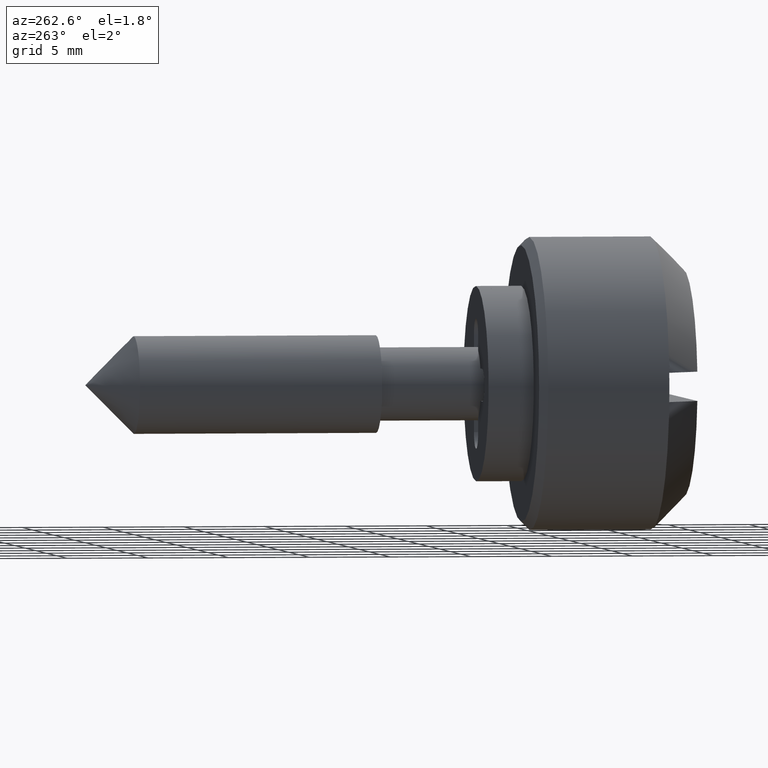
[diagram: clean part render]
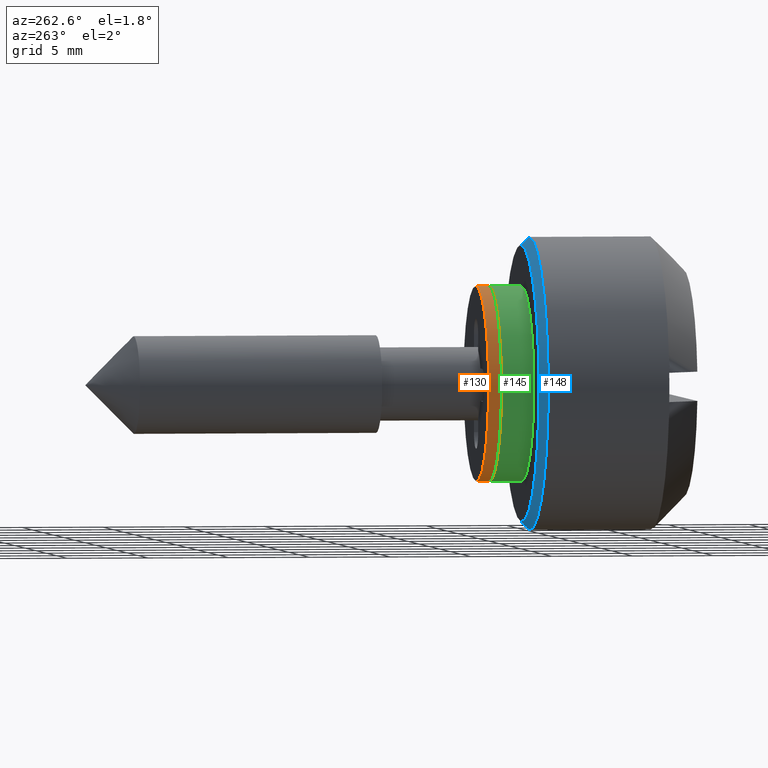
[diagram: same view with three faces highlighted in distinct colors, each labeled with its STEP entity id]
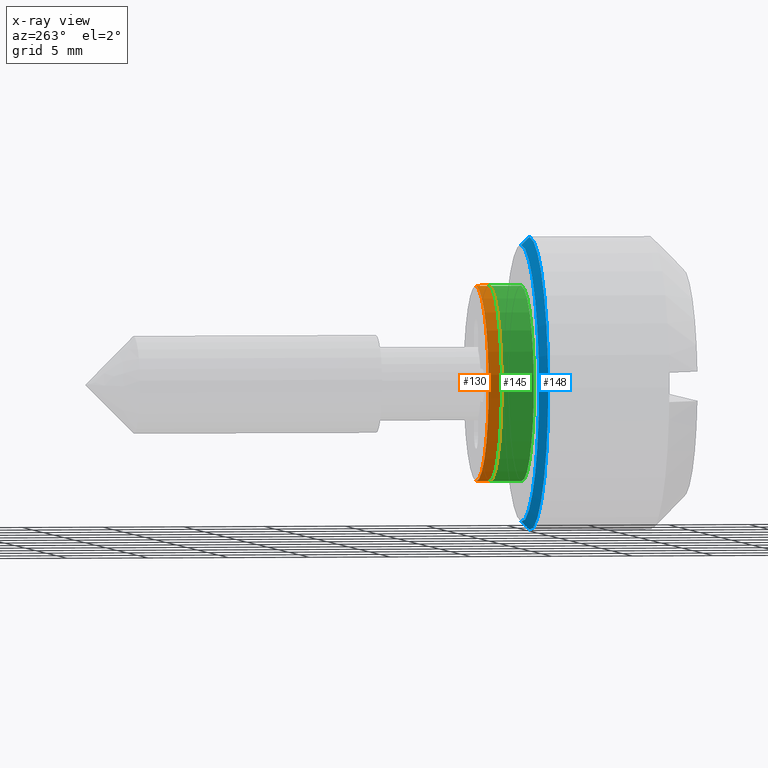
[diagram: x-ray of the same camera — body ghosted, the three highlighted faces saturated]
A machine part, auxiliary view with three faces highlighted in distinct colors.
The next image is the same camera in x-ray (body ghosted, the three faces saturated) — at least one of them is partly hidden behind the body in this view.
Their STEP definitions:

[orange] entity #130 — the highlighted cylindrical surface (partial cylindrical patch) has radius 6 mm, axis along (0, 1, 0).
#130=ADVANCED_FACE('',(#337),#336,.T.);
#336=CYLINDRICAL_SURFACE('',#674,6.00000000000E+00);
#337=FACE_OUTER_BOUND('',#675,.T.);
#671=CARTESIAN_POINT('',(0.00000000000E+00,1.00000000000E+03,0.00000000000E+00));
#672=DIRECTION('',(-0.00000000000E+00,1.00000000000E+00,-0.00000000000E+00));
#673=DIRECTION('',(1.22464679915E-16,0.00000000000E+00,-1.00000000000E+00));
#674=AXIS2_PLACEMENT_3D('',#671,#672,#673);
#675=EDGE_LOOP('',(#930,#931,#932,#933));
#930=ORIENTED_EDGE('',*,*,#1041,.T.);
#931=ORIENTED_EDGE('',*,*,#1082,.F.);
#932=ORIENTED_EDGE('',*,*,#1080,.F.);
#933=ORIENTED_EDGE('',*,*,#1083,.T.);
#1041=EDGE_CURVE('',#1199,#1198,#1206,.T.);
#1080=EDGE_CURVE('',#1464,#1465,#1466,.T.);
#1082=EDGE_CURVE('',#1465,#1198,#1478,.T.);
#1083=EDGE_CURVE('',#1464,#1199,#1484,.T.);
#1198=VERTEX_POINT('',#1835);
#1199=VERTEX_POINT('',#1836);
#1206=CIRCLE('',#1844,6.00000000000E+00);
#1464=VERTEX_POINT('',#1997);
#1465=VERTEX_POINT('',#1998);
#1466=CIRCLE('',#2002,6.00000000000E+00);
#1478=(BOUNDED_CURVE() B_SPLINE_CURVE(1,(#2007,#2008),.UNSPECIFIED.,.F.,.F.) B_SPLINE_CURVE_WITH_KNOTS((2,2),(8.33332935974E-02,9.16666633252E-01),.UNSPECIFIED.) CURVE() GEOMETRIC_REPRESENTATION_ITEM() RATIONAL_B_SPLINE_CURVE((1.00000000000E+00,1.00000000000E+00)) REPRESENTATION_ITEM('') );
#1484=(BOUNDED_CURVE() B_SPLINE_CURVE(1,(#2009,#2010),.UNSPECIFIED.,.F.,.F.) B_SPLINE_CURVE_WITH_KNOTS((2,2),(8.33333333334E-02,9.16666666667E-01),.UNSPECIFIED.) CURVE() GEOMETRIC_REPRESENTATION_ITEM() RATIONAL_B_SPLINE_CURVE((7.50000000000E-01,7.50000000000E-01)) REPRESENTATION_ITEM('') );
#1835=CARTESIAN_POINT('',(1.18423789293E-15,8.00000000000E-01,-6.00000000000E+00));
#1836=CARTESIAN_POINT('',(0.00000000000E+00,8.00000000000E-01,6.00000000000E+00));
#1841=CARTESIAN_POINT('',(0.00000000000E+00,8.00000000000E-01,0.00000000000E+00));
#1842=DIRECTION('',(-0.00000000000E+00,-1.00000000000E+00,0.00000000000E+00));
#1843=DIRECTION('',(-1.22460635382E-16,0.00000000000E+00,1.00000000000E+00));
#1844=AXIS2_PLACEMENT_3D('',#1841,#1842,#1843);
#1997=CARTESIAN_POINT('',(0.00000000000E+00,0.00000000000E+00,6.00000000000E+00));
#1998=CARTESIAN_POINT('',(1.18423789293E-15,0.00000000000E+00,-6.00000000000E+00));
#1999=CARTESIAN_POINT('',(0.00000000000E+00,0.00000000000E+00,0.00000000000E+00));
#2000=DIRECTION('',(-0.00000000000E+00,-1.00000000000E+00,0.00000000000E+00));
#2001=DIRECTION('',(-1.22460635382E-16,0.00000000000E+00,1.00000000000E+00));
#2002=AXIS2_PLACEMENT_3D('',#1999,#2000,#2001);
#2007=CARTESIAN_POINT('',(7.34788079488E-16,-3.81465210669E-08,-6.00000000000E+00));
#2008=CARTESIAN_POINT('',(7.34788079488E-16,7.99999967922E-01,-6.00000000000E+00));
#2009=CARTESIAN_POINT('',(0.00000000000E+00,0.00000000000E+00,6.00000000000E+00));
#2010=CARTESIAN_POINT('',(0.00000000000E+00,8.00000000000E-01,6.00000000000E+00));

[blue] entity #148 — the highlighted face is a freeform B-spline surface patch.
#148=ADVANCED_FACE('',(#520),#519,.T.);
#519=( BOUNDED_SURFACE() B_SPLINE_SURFACE( 2,1,((#776,#777),(#778,#779),(#780,#781),(#782,#783),(#784,#785)), .UNSPECIFIED.,.F.,.F.,.F.) B_SPLINE_SURFACE_WITH_KNOTS((3,2,3),(2,2),(0.00000000000E+00,5.00000000000E-01,1.00000000000E+00),(0.00000000000E+00,1.00000000000E+00), .UNSPECIFIED. ) GEOMETRIC_REPRESENTATION_ITEM() RATIONAL_B_SPLINE_SURFACE(((1.00000000000E+00,1.00000000000E+00),(7.07106781187E-01,7.07106781187E-01),(1.00000000000E+00,1.00000000000E+00),(7.07106781187E-01,7.07106781187E-01),(1.00000000000E+00,1.00000000000E+00))) REPRESENTATION_ITEM('') SURFACE() );
#520=FACE_OUTER_BOUND('',#786,.T.);
#776=CARTESIAN_POINT('',(6.50000000000E+00,0.00000000000E+00,0.00000000000E+00));
#777=CARTESIAN_POINT('',(-6.22792206136E+00,-6.62850299885E-15,1.27279220614E+01));
#778=CARTESIAN_POINT('',(6.50000000000E+00,0.00000000000E+00,0.00000000000E+00));
#779=CARTESIAN_POINT('',(-6.22792206136E+00,1.27279220614E+01,1.27279220614E+01));
#780=CARTESIAN_POINT('',(6.50000000000E+00,0.00000000000E+00,0.00000000000E+00));
#781=CARTESIAN_POINT('',(-6.22792206136E+00,1.27279220614E+01,7.40786344946E-15));
#782=CARTESIAN_POINT('',(6.50000000000E+00,0.00000000000E+00,0.00000000000E+00));
#783=CARTESIAN_POINT('',(-6.22792206136E+00,1.27279220614E+01,-1.27279220614E+01));
#784=CARTESIAN_POINT('',(6.50000000000E+00,0.00000000000E+00,0.00000000000E+00));
#785=CARTESIAN_POINT('',(-6.22792206136E+00,8.18722390008E-15,-1.27279220614E+01));
#786=EDGE_LOOP('',(#1008,#1009,#1010,#1011));
#1008=ORIENTED_EDGE('',*,*,#1115,.F.);
#1009=ORIENTED_EDGE('',*,*,#1122,.F.);
#1010=ORIENTED_EDGE('',*,*,#1098,.F.);
#1011=ORIENTED_EDGE('',*,*,#1123,.T.);
#1098=EDGE_CURVE('',#1586,#1587,#1588,.T.);
#1115=EDGE_CURVE('',#1694,#1701,#1702,.T.);
#1122=EDGE_CURVE('',#1587,#1694,#1744,.T.);
#1123=EDGE_CURVE('',#1586,#1701,#1750,.T.);
#1586=VERTEX_POINT('',#2075);
#1587=VERTEX_POINT('',#2076);
#1588=CIRCLE('',#2080,8.50000000000E+00);
#1694=VERTEX_POINT('',#2147);
#1701=VERTEX_POINT('',#2150);
#1702=CIRCLE('',#2154,9.00000000000E+00);
#1744=(BOUNDED_CURVE() B_SPLINE_CURVE(1,(#2169,#2170),.UNSPECIFIED.,.F.,.F.) B_SPLINE_CURVE_WITH_KNOTS((2,2),(6.67823071777E-01,7.07106781302E-01),.UNSPECIFIED.) CURVE() GEOMETRIC_REPRESENTATION_ITEM() RATIONAL_B_SPLINE_CURVE((1.00000000000E+00,1.00000000000E+00)) REPRESENTATION_ITEM('') );
#1750=(BOUNDED_CURVE() B_SPLINE_CURVE(1,(#2171,#2172),.UNSPECIFIED.,.F.,.F.) B_SPLINE_CURVE_WITH_KNOTS((2,2),(6.67823024768E-01,7.07106780467E-01),.UNSPECIFIED.) CURVE() GEOMETRIC_REPRESENTATION_ITEM() RATIONAL_B_SPLINE_CURVE((7.50000000000E-01,7.50000000000E-01)) REPRESENTATION_ITEM('') );
#2075=CARTESIAN_POINT('',(-2.00000000000E+00,0.00000000000E+00,-8.50000000000E+00));
#2076=CARTESIAN_POINT('',(-2.00000000000E+00,8.88178419700E-16,8.50000000000E+00));
#2077=CARTESIAN_POINT('',(-2.00000000000E+00,0.00000000000E+00,0.00000000000E+00));
#2078=DIRECTION('',(1.00000000000E+00,0.00000000000E+00,0.00000000000E+00));
#2079=DIRECTION('',(0.00000000000E+00,-1.22460635382E-16,-1.00000000000E+00));
#2080=AXIS2_PLACEMENT_3D('',#2077,#2078,#2079);
#2147=CARTESIAN_POINT('',(-2.50000000000E+00,-2.66453525910E-15,9.00000000000E+00));
#2150=CARTESIAN_POINT('',(-2.50000000000E+00,0.00000000000E+00,-9.00000000000E+00));
#2151=CARTESIAN_POINT('',(-2.50000000000E+00,0.00000000000E+00,0.00000000000E+00));
#2152=DIRECTION('',(-1.00000000000E+00,0.00000000000E+00,-0.00000000000E+00));
#2153=DIRECTION('',(0.00000000000E+00,-1.22460635382E-16,-1.00000000000E+00));
#2154=AXIS2_PLACEMENT_3D('',#2151,#2152,#2153);
#2169=CARTESIAN_POINT('',(-2.00000000836E+00,-4.42666723398E-15,8.50000000836E+00));
#2170=CARTESIAN_POINT('',(-2.50000000147E+00,-4.68705942037E-15,9.00000000147E+00));
#2171=CARTESIAN_POINT('',(-1.99999941003E+00,4.34973732437E-15,-8.49999941003E+00));
#2172=CARTESIAN_POINT('',(-2.49999999084E+00,4.60560454079E-15,-8.99999999084E+00));

[green] entity #145 — the highlighted cylindrical surface (partial cylindrical patch) has radius 6 mm, axis along (0, -1, -0).
#145=ADVANCED_FACE('',(#490),#489,.T.);
#489=CYLINDRICAL_SURFACE('',#764,6.00000000000E+00);
#490=FACE_OUTER_BOUND('',#765,.T.);
#761=CARTESIAN_POINT('',(-1.00000000000E+03,0.00000000000E+00,0.00000000000E+00));
#762=DIRECTION('',(-1.00000000000E+00,-0.00000000000E+00,-0.00000000000E+00));
#763=DIRECTION('',(0.00000000000E+00,1.22464679915E-16,-1.00000000000E+00));
#764=AXIS2_PLACEMENT_3D('',#761,#762,#763);
#765=EDGE_LOOP('',(#996,#997,#998,#999));
#996=ORIENTED_EDGE('',*,*,#1095,.F.);
#997=ORIENTED_EDGE('',*,*,#1118,.T.);
#998=ORIENTED_EDGE('',*,*,#1101,.F.);
#999=ORIENTED_EDGE('',*,*,#1119,.F.);
#1095=EDGE_CURVE('',#1559,#1558,#1566,.T.);
#1101=EDGE_CURVE('',#1601,#1600,#1608,.T.);
#1118=EDGE_CURVE('',#1559,#1600,#1720,.T.);
#1119=EDGE_CURVE('',#1558,#1601,#1726,.T.);
#1558=VERTEX_POINT('',#2055);
#1559=VERTEX_POINT('',#2056);
#1566=CIRCLE('',#2064,6.00000000000E+00);
#1600=VERTEX_POINT('',#2085);
#1601=VERTEX_POINT('',#2086);
#1608=CIRCLE('',#2094,6.00000000000E+00);
#1720=(BOUNDED_CURVE() B_SPLINE_CURVE(1,(#2161,#2162),.UNSPECIFIED.,.F.,.F.) B_SPLINE_CURVE_WITH_KNOTS((2,2),(8.33333134656E-02,9.16666653270E-01),.UNSPECIFIED.) CURVE() GEOMETRIC_REPRESENTATION_ITEM() RATIONAL_B_SPLINE_CURVE((1.00000000000E+00,1.00000000000E+00)) REPRESENTATION_ITEM('') );
#1726=(BOUNDED_CURVE() B_SPLINE_CURVE(1,(#2163,#2164),.UNSPECIFIED.,.F.,.F.) B_SPLINE_CURVE_WITH_KNOTS((2,2),(8.33333333333E-02,9.16666666667E-01),.UNSPECIFIED.) CURVE() GEOMETRIC_REPRESENTATION_ITEM() RATIONAL_B_SPLINE_CURVE((7.50000000000E-01,7.50000000000E-01)) REPRESENTATION_ITEM('') );
#2055=CARTESIAN_POINT('',(0.00000000000E+00,0.00000000000E+00,6.00000000000E+00));
#2056=CARTESIAN_POINT('',(0.00000000000E+00,1.18423789293E-15,-6.00000000000E+00));
#2061=CARTESIAN_POINT('',(0.00000000000E+00,0.00000000000E+00,0.00000000000E+00));
#2062=DIRECTION('',(1.00000000000E+00,0.00000000000E+00,-0.00000000000E+00));
#2063=DIRECTION('',(0.00000000000E+00,-1.22460635382E-16,1.00000000000E+00));
#2064=AXIS2_PLACEMENT_3D('',#2061,#2062,#2063);
#2085=CARTESIAN_POINT('',(-2.00000000000E+00,0.00000000000E+00,-6.00000000000E+00));
#2086=CARTESIAN_POINT('',(-2.00000000000E+00,1.18423789293E-15,6.00000000000E+00));
#2091=CARTESIAN_POINT('',(-2.00000000000E+00,0.00000000000E+00,0.00000000000E+00));
#2092=DIRECTION('',(-1.00000000000E+00,0.00000000000E+00,-0.00000000000E+00));
#2093=DIRECTION('',(0.00000000000E+00,-1.22460635382E-16,-1.00000000000E+00));
#2094=AXIS2_PLACEMENT_3D('',#2091,#2092,#2093);
#2161=CARTESIAN_POINT('',(4.76825442464E-08,7.34788079488E-16,-6.00000000000E+00));
#2162=CARTESIAN_POINT('',(-1.99999996785E+00,7.34788079488E-16,-6.00000000000E+00));
#2163=CARTESIAN_POINT('',(3.70074341542E-17,0.00000000000E+00,6.00000000000E+00));
#2164=CARTESIAN_POINT('',(-2.00000000000E+00,0.00000000000E+00,6.00000000000E+00));